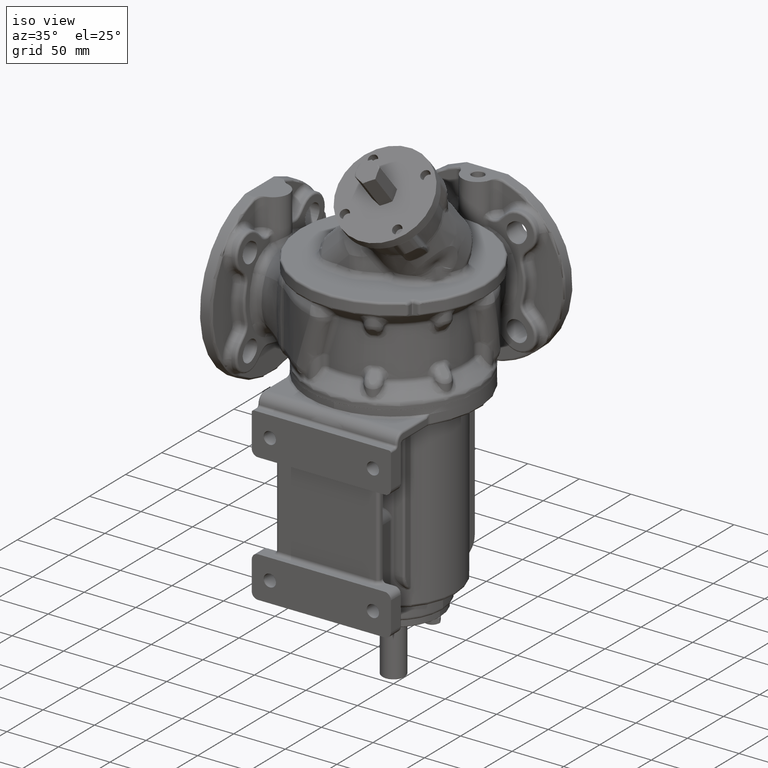
[diagram: clean part render]
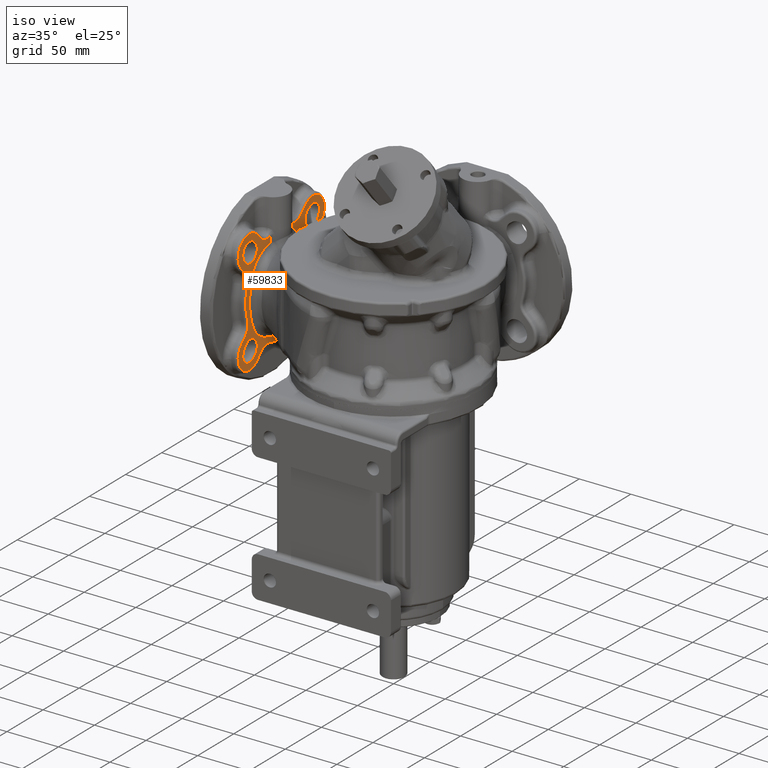
[diagram: same view with one face highlighted and labeled with its STEP entity id]
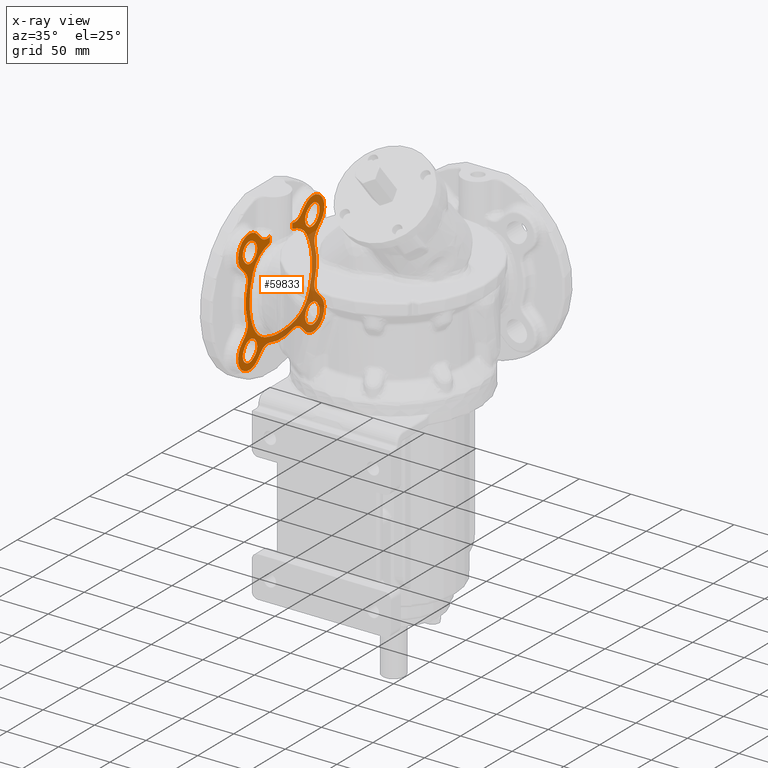
[diagram: x-ray of the same camera — body ghosted, the highlighted face saturated]
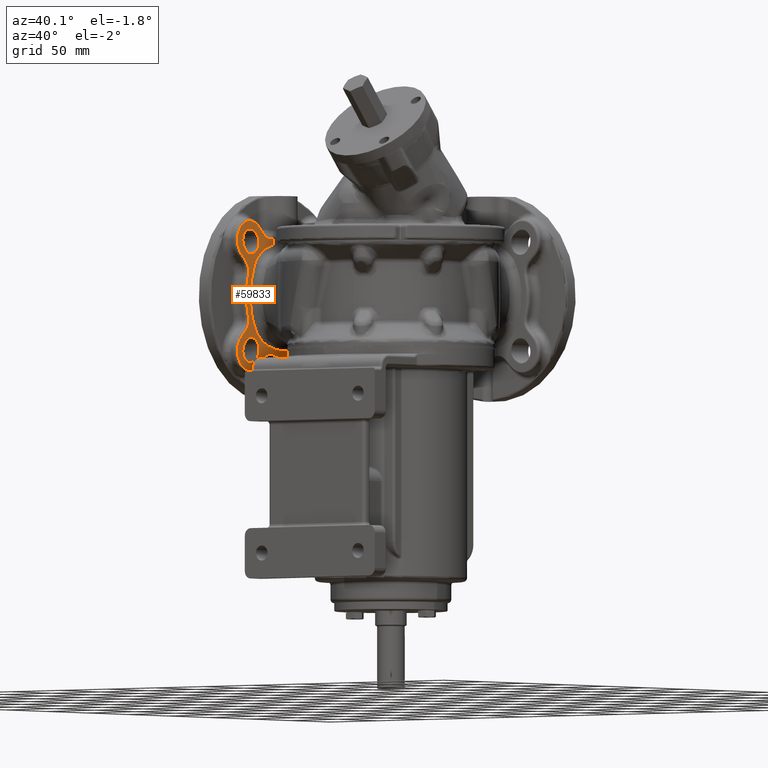
[diagram: same view with one face highlighted and labeled with its STEP entity id]
A machine part, iso view. The second image highlights one B-rep face of the part: STEP entity #59833.
The next image is the same camera in x-ray: the body ghosted, the highlighted face saturated — about 33% of this face is hidden behind the body in this view.
A second angle (auxiliary view) of the same face is appended — the face is thin or edge-on in the first view.
In plain terms, the highlighted planar face has unit normal (-1, 0, 0).
Its self-contained STEP definition (entity closure, byte-faithful):
#13187=CARTESIAN_POINT('',(-1.090000000029E2,2.128389456438E1,
8.964380451324E1));
#13188=CARTESIAN_POINT('',(-1.089999954299E2,2.067599871339E1,
8.986076207742E1));
#13189=CARTESIAN_POINT('',(-1.090000005511E2,1.944519283142E1,
9.027172386279E1));
#13190=CARTESIAN_POINT('',(-1.090000049261E2,1.755340057354E1,
9.082120822915E1));
#13191=CARTESIAN_POINT('',(-1.089999881383E2,1.626422520844E1,
9.114323647291E1));
#13192=CARTESIAN_POINT('',(-1.089999906337E2,1.561250317104E1,
9.129344307580E1));
#13194=DIRECTION('',(1.815754452543E-6,1.584827714395E-6,-9.999999999971E-1));
#13195=VECTOR('',#13194,5.158357434338E0);
#13196=CARTESIAN_POINT('',(-1.09E2,1.561249499594E1,9.645180051012E1));
#13197=LINE('',#13196,#13195);
#13198=CARTESIAN_POINT('',(-1.09E2,1.905618685977E1,1.079470598250E2));
#13199=DIRECTION('',(-1.E0,0.E0,0.E0));
#13200=DIRECTION('',(0.E0,7.071067811865E-1,-7.071067811865E-1));
#13201=AXIS2_PLACEMENT_3D('',#13198,#13199,#13200);
#13203=DIRECTION('',(0.E0,-7.071067812017E-1,-7.071067811713E-1));
#13204=VECTOR('',#13203,8.050482095565E0);
#13205=CARTESIAN_POINT('',(-1.09E2,3.323401871577E1,1.051543289326E2));
#13206=LINE('',#13205,#13204);
#13207=CARTESIAN_POINT('',(-1.09E2,4.419417382416E1,9.419417382416E1));
#13208=DIRECTION('',(1.E0,0.E0,0.E0));
#13209=DIRECTION('',(0.E0,7.071067811865E-1,-7.071067811865E-1));
#13210=AXIS2_PLACEMENT_3D('',#13207,#13208,#13209);
#13212=DIRECTION('',(0.E0,7.071067811524E-1,7.071067812207E-1));
#13213=VECTOR('',#13212,8.050482095491E0);
#13214=CARTESIAN_POINT('',(-1.09E2,4.946177845128E1,7.754146823395E1));
#13215=LINE('',#13214,#13213);
#13216=CARTESIAN_POINT('',(-1.09E2,5.794705982503E1,6.905618685977E1));
#13217=DIRECTION('',(-1.E0,0.E0,0.E0));
#13218=DIRECTION('',(0.E0,-9.499518004103E-1,-3.123965058979E-1));
#13219=AXIS2_PLACEMENT_3D('',#13216,#13217,#13218);
#13221=CARTESIAN_POINT('',(-1.09E2,0.E0,5.E1));
#13222=DIRECTION('',(1.E0,0.E0,0.E0));
#13223=DIRECTION('',(0.E0,9.499518004103E-1,-3.123965058979E-1));
#13224=AXIS2_PLACEMENT_3D('',#13221,#13222,#13223);
#13226=CARTESIAN_POINT('',(-1.09E2,5.794705982503E1,3.094381314023E1));
#13227=DIRECTION('',(-1.E0,0.E0,0.E0));
#13228=DIRECTION('',(0.E0,-7.071067811865E-1,-7.071067811865E-1));
#13229=AXIS2_PLACEMENT_3D('',#13226,#13227,#13228);
#13231=DIRECTION('',(0.E0,-7.071067811713E-1,7.071067812017E-1));
#13232=VECTOR('',#13231,8.050482095565E0);
#13233=CARTESIAN_POINT('',(-1.09E2,5.515432893255E1,1.676598128423E1));
#13234=LINE('',#13233,#13232);
#13235=CARTESIAN_POINT('',(-1.09E2,4.419417382416E1,5.805826175841E0));
#13236=DIRECTION('',(1.E0,0.E0,0.E0));
#13237=DIRECTION('',(0.E0,-7.071067811865E-1,-7.071067811865E-1));
#13238=AXIS2_PLACEMENT_3D('',#13235,#13236,#13237);
#13240=DIRECTION('',(-1.059130711426E-14,7.071067812207E-1,-7.071067811524E-1));
#13241=VECTOR('',#13240,8.050482095490E0);
#13242=CARTESIAN_POINT('',(-1.09E2,2.754146823395E1,5.382215487168E-1));
#13243=LINE('',#13242,#13241);
#13244=CARTESIAN_POINT('',(-1.09E2,1.905618685977E1,-7.947059825030E0));
#13245=DIRECTION('',(-1.E0,0.E0,0.E0));
#13246=DIRECTION('',(0.E0,-3.123965058979E-1,9.499518004103E-1));
#13247=AXIS2_PLACEMENT_3D('',#13244,#13245,#13246);
#13249=CARTESIAN_POINT('',(-1.09E2,0.E0,5.E1));
#13250=DIRECTION('',(1.E0,0.E0,0.E0));
#13251=DIRECTION('',(0.E0,-3.123965058979E-1,-9.499518004103E-1));
#13252=AXIS2_PLACEMENT_3D('',#13249,#13250,#13251);
#13254=CARTESIAN_POINT('',(-1.09E2,-1.905618685977E1,-7.947059825030E0));
#13255=DIRECTION('',(-1.E0,0.E0,0.E0));
#13256=DIRECTION('',(0.E0,-7.071067811865E-1,7.071067811865E-1));
#13257=AXIS2_PLACEMENT_3D('',#13254,#13255,#13256);
#13259=DIRECTION('',(0.E0,7.071067812017E-1,7.071067811713E-1));
#13260=VECTOR('',#13259,8.050482095565E0);
#13261=CARTESIAN_POINT('',(-1.09E2,-3.323401871577E1,-5.154328932551E0));
#13262=LINE('',#13261,#13260);
#13263=CARTESIAN_POINT('',(-1.09E2,-4.419417382416E1,5.805826175841E0));
#13264=DIRECTION('',(1.E0,0.E0,0.E0));
#13265=DIRECTION('',(0.E0,-7.071067811865E-1,7.071067811865E-1));
#13266=AXIS2_PLACEMENT_3D('',#13263,#13264,#13265);
#13268=DIRECTION('',(0.E0,-7.071067811524E-1,-7.071067812207E-1));
#13269=VECTOR('',#13268,8.050482095490E0);
#13270=CARTESIAN_POINT('',(-1.09E2,-4.946177845128E1,2.245853176605E1));
#13271=LINE('',#13270,#13269);
#13272=CARTESIAN_POINT('',(-1.09E2,-5.794705982503E1,3.094381314023E1));
#13273=DIRECTION('',(-1.E0,0.E0,0.E0));
#13274=DIRECTION('',(0.E0,9.499518004103E-1,3.123965058978E-1));
#13275=AXIS2_PLACEMENT_3D('',#13272,#13273,#13274);
#13277=CARTESIAN_POINT('',(-1.09E2,0.E0,5.E1));
#13278=DIRECTION('',(1.E0,0.E0,0.E0));
#13279=DIRECTION('',(0.E0,-9.499518004103E-1,3.123965058979E-1));
#13280=AXIS2_PLACEMENT_3D('',#13277,#13278,#13279);
#13282=CARTESIAN_POINT('',(-1.09E2,-5.794705982503E1,6.905618685977E1));
#13283=DIRECTION('',(-1.E0,0.E0,0.E0));
#13284=DIRECTION('',(0.E0,7.071067811865E-1,7.071067811865E-1));
#13285=AXIS2_PLACEMENT_3D('',#13282,#13283,#13284);
#13287=DIRECTION('',(0.E0,7.071067811713E-1,-7.071067812017E-1));
#13288=VECTOR('',#13287,8.050482095565E0);
#13289=CARTESIAN_POINT('',(-1.09E2,-5.515432893255E1,8.323401871577E1));
#13290=LINE('',#13289,#13288);
#13291=CARTESIAN_POINT('',(-1.09E2,-4.419417382416E1,9.419417382416E1));
#13292=DIRECTION('',(1.E0,0.E0,0.E0));
#13293=DIRECTION('',(0.E0,7.071067811865E-1,7.071067811865E-1));
#13294=AXIS2_PLACEMENT_3D('',#13291,#13292,#13293);
#13296=DIRECTION('',(0.E0,-7.071067812207E-1,7.071067811524E-1));
#13297=VECTOR('',#13296,8.050482095490E0);
#13298=CARTESIAN_POINT('',(-1.09E2,-2.754146823395E1,9.946177845128E1));
#13299=LINE('',#13298,#13297);
#13300=CARTESIAN_POINT('',(-1.09E2,-1.905618685977E1,1.079470598250E2));
#13301=DIRECTION('',(-1.E0,0.E0,0.E0));
#13302=DIRECTION('',(0.E0,2.869743204220E-1,-9.579382753697E-1));
#13303=AXIS2_PLACEMENT_3D('',#13300,#13301,#13302);
#13305=DIRECTION('',(1.128216650522E-7,2.957406500595E-6,9.999999999956E-1));
#13306=VECTOR('',#13305,5.202367743112E0);
#13307=CARTESIAN_POINT('',(-1.090000005869E2,-1.561251038147E1,
9.124943276617E1));
#13308=LINE('',#13307,#13306);
#13309=CARTESIAN_POINT('',(-1.090000005869E2,-1.561251038147E1,
9.124943276617E1));
#13310=CARTESIAN_POINT('',(-1.089999971633E2,-1.671626935527E1,
9.100054712072E1));
#13311=CARTESIAN_POINT('',(-1.089999975172E2,-1.884126086478E1,
9.045452564702E1));
#13312=CARTESIAN_POINT('',(-1.090000129448E2,-2.178399524781E1,
8.950108027550E1));
#13313=CARTESIAN_POINT('',(-1.089999714507E2,-2.358448566581E1,
8.878800731581E1));
#13314=CARTESIAN_POINT('',(-1.090000001221E2,-2.444524435160E1,
8.841340848381E1));
#13316=CARTESIAN_POINT('',(-1.090000001221E2,-2.444524435160E1,
8.841340848381E1));
#13317=CARTESIAN_POINT('',(-1.090000828153E2,-2.574966497412E1,
8.784601868877E1));
#13318=CARTESIAN_POINT('',(-1.089999621536E2,-2.824847908572E1,
8.653539048127E1));
#13319=CARTESIAN_POINT('',(-1.090000082393E2,-3.183335076841E1,
8.390025593914E1));
#13320=CARTESIAN_POINT('',(-1.090000048890E2,-3.473694107679E1,
8.097969347896E1));
#13321=CARTESIAN_POINT('',(-1.089999722045E2,-3.711571429785E1,
7.775340302932E1));
#13322=CARTESIAN_POINT('',(-1.090000615968E2,-3.853999204207E1,
7.505766497074E1));
#13323=CARTESIAN_POINT('',(-1.089999998600E2,-3.918768947206E1,
7.359825777113E1));
#13325=CARTESIAN_POINT('',(-1.089999998600E2,-3.918768947206E1,
7.359825777113E1));
#13326=CARTESIAN_POINT('',(-1.089999913509E2,-4.014396027098E1,
7.144580035176E1));
#13327=CARTESIAN_POINT('',(-1.090000040094E2,-4.180552288235E1,
6.690162180276E1));
#13328=CARTESIAN_POINT('',(-1.089999989406E2,-4.346258760274E1,
5.932368505712E1));
#13329=CARTESIAN_POINT('',(-1.090000002282E2,-4.414529939832E1,
5.094333822659E1));
#13330=CARTESIAN_POINT('',(-1.090000001467E2,-4.370130355312E1,
4.243778295628E1));
#13331=CARTESIAN_POINT('',(-1.089999991849E2,-4.224087350264E1,
3.468141514487E1));
#13332=CARTESIAN_POINT('',(-1.090000018042E2,-4.069593011116E1,
3.003138676434E1));
#13333=CARTESIAN_POINT('',(-1.089999999202E2,-3.979446096619E1,
2.782546661251E1));
#13335=CARTESIAN_POINT('',(-1.089999999202E2,-3.979446096619E1,
2.782546661251E1));
#13336=CARTESIAN_POINT('',(-1.090000293748E2,-3.907944455669E1,
2.607445663882E1));
#13337=CARTESIAN_POINT('',(-1.089999868910E2,-3.748956621118E1,
2.287300105185E1));
#13338=CARTESIAN_POINT('',(-1.090000018194E2,-3.478793897101E1,
1.913633846009E1));
#13339=CARTESIAN_POINT('',(-1.090000058315E2,-3.151137427151E1,
1.587928204626E1));
#13340=CARTESIAN_POINT('',(-1.089999748545E2,-2.731102030622E1,
1.293476240249E1));
#13341=CARTESIAN_POINT('',(-1.090000547851E2,-2.424702442092E1,
1.146437191366E1));
#13342=CARTESIAN_POINT('',(-1.090000000659E2,-2.261493555377E1,
1.084120580133E1));
#13344=CARTESIAN_POINT('',(-1.090000000659E2,-2.261493555377E1,
1.084120580133E1));
#13345=CARTESIAN_POINT('',(-1.089999557310E2,-2.065435262047E1,
1.009257591700E1));
#13346=CARTESIAN_POINT('',(-1.090000206581E2,-1.638005805409E1,
8.777568916424E0));
#13347=CARTESIAN_POINT('',(-1.089999941002E2,-8.865289608161E0,
7.458365851099E0));
#13348=CARTESIAN_POINT('',(-1.089999999940E2,-3.095430981267E0,
7.092374299501E0));
#13349=CARTESIAN_POINT('',(-1.09E2,-2.215114957113E-2,7.080926254618E0));
#13351=CARTESIAN_POINT('',(-1.09E2,-2.215114957113E-2,7.080926254618E0));
#13352=CARTESIAN_POINT('',(-1.089999971089E2,2.835505164924E0,
7.070291707739E0));
#13353=CARTESIAN_POINT('',(-1.090000004202E2,8.223148043643E0,
7.347444206202E0));
#13354=CARTESIAN_POINT('',(-1.090000028661E2,1.531621314617E1,
8.497780351880E0));
#13355=CARTESIAN_POINT('',(-1.089999930322E2,1.939643593897E1,
9.681667168879E0));
#13356=CARTESIAN_POINT('',(-1.09E2,2.128386767670E1,1.035540147691E1));
#13358=CARTESIAN_POINT('',(-1.09E2,2.128386767670E1,1.035540147691E1));
#13359=CARTESIAN_POINT('',(-1.090000442386E2,2.276430859106E1,
1.088382499150E1));
#13360=CARTESIAN_POINT('',(-1.089999794994E2,2.551265766248E1,
1.210600593222E1));
#13361=CARTESIAN_POINT('',(-1.090000053942E2,2.916297027206E1,
1.439890279943E1));
#13362=CARTESIAN_POINT('',(-1.089999989238E2,3.199281661296E1,
1.685064502184E1));
#13363=CARTESIAN_POINT('',(-1.089999989104E2,3.439610496337E1,
1.964170568302E1));
#13364=CARTESIAN_POINT('',(-1.090000054344E2,3.656355690417E1,
2.311351602578E1));
#13365=CARTESIAN_POINT('',(-1.089999880460E2,3.783152169155E1,
2.591078806424E1));
#13366=CARTESIAN_POINT('',(-1.090000000029E2,3.843262314823E1,
2.742385472773E1));
#13368=CARTESIAN_POINT('',(-1.090000000029E2,3.843262314823E1,
2.742385472773E1));
#13369=CARTESIAN_POINT('',(-1.090000095617E2,3.947675224382E1,
3.005260440760E1));
#13370=CARTESIAN_POINT('',(-1.089999955475E2,4.116739190602E1,
3.523918148846E1));
#13371=CARTESIAN_POINT('',(-1.090000012412E2,4.259526266552E1,
4.266997398013E1));
#13372=CARTESIAN_POINT('',(-1.089999994877E2,4.306411353099E1,
5.000138907850E1));
#13373=CARTESIAN_POINT('',(-1.090000008078E2,4.259498080375E1,
5.733244078051E1));
#13374=CARTESIAN_POINT('',(-1.089999972810E2,4.116644177028E1,
6.476443416923E1));
#13375=CARTESIAN_POINT('',(-1.090000058059E2,3.947616432684E1,
6.994885455064E1));
#13376=CARTESIAN_POINT('',(-1.090000000034E2,3.843258901497E1,
7.257622178034E1));
#13378=CARTESIAN_POINT('',(-1.090000000034E2,3.843258901497E1,
7.257622178034E1));
#13379=CARTESIAN_POINT('',(-1.089999864582E2,3.783110367628E1,
7.409021752442E1));
#13380=CARTESIAN_POINT('',(-1.090000061770E2,3.656296908746E1,
7.688902982185E1));
#13381=CARTESIAN_POINT('',(-1.089999986934E2,3.439411514626E1,
8.036391898067E1));
#13382=CARTESIAN_POINT('',(-1.089999990496E2,3.199331175185E1,
8.315216736828E1));
#13383=CARTESIAN_POINT('',(-1.090000051083E2,2.916486506112E1,
8.560157813315E1));
#13384=CARTESIAN_POINT('',(-1.089999805171E2,2.552414421129E1,
8.788784816703E1));
#13385=CARTESIAN_POINT('',(-1.090000420546E2,2.276951878565E1,
8.911358465033E1));
#13386=CARTESIAN_POINT('',(-1.090000000029E2,2.128389456438E1,
8.964380451324E1));
#13388=CARTESIAN_POINT('',(-1.09E2,4.419417382416E1,5.805826175841E0));
#13389=DIRECTION('',(-1.E0,0.E0,0.E0));
#13390=DIRECTION('',(0.E0,8.493086960671E-1,5.278965228005E-1));
#13391=AXIS2_PLACEMENT_3D('',#13388,#13389,#13390);
#13393=DIRECTION('',(0.E0,5.278965228005E-1,-8.493086960671E-1));
#13394=VECTOR('',#13393,2.142428528563E0);
#13395=CARTESIAN_POINT('',(-1.09E2,5.070697151819E1,1.237647806106E1));
#13396=LINE('',#13395,#13394);
#13397=CARTESIAN_POINT('',(-1.09E2,4.263853890555E1,7.361461094451E0));
#13398=DIRECTION('',(-1.E0,0.E0,0.E0));
#13399=DIRECTION('',(0.E0,-5.278965228005E-1,-8.493086960671E-1));
#13400=AXIS2_PLACEMENT_3D('',#13397,#13398,#13399);
#13402=DIRECTION('',(0.E0,-8.493086960671E-1,5.278965228005E-1));
#13403=VECTOR('',#13402,2.142428528563E0);
#13404=CARTESIAN_POINT('',(-1.09E2,3.944310511895E1,-1.837952088763E0));
#13405=LINE('',#13404,#13403);
#13406=CARTESIAN_POINT('',(-1.09E2,4.419417382416E1,9.419417382416E1));
#13407=DIRECTION('',(-1.E0,0.E0,0.E0));
#13408=DIRECTION('',(0.E0,-5.278965228005E-1,8.493086960671E-1));
#13409=AXIS2_PLACEMENT_3D('',#13406,#13407,#13408);
#13411=DIRECTION('',(0.E0,8.493086960671E-1,5.278965228005E-1));
#13412=VECTOR('',#13411,2.142428528563E0);
#13413=CARTESIAN_POINT('',(-1.09E2,3.762352193894E1,1.007069715182E2));
#13414=LINE('',#13413,#13412);
#13415=CARTESIAN_POINT('',(-1.09E2,4.263853890555E1,9.263853890555E1));
#13416=DIRECTION('',(-1.E0,0.E0,0.E0));
#13417=DIRECTION('',(0.E0,8.493086960671E-1,-5.278965228005E-1));
#13418=AXIS2_PLACEMENT_3D('',#13415,#13416,#13417);
#13420=DIRECTION('',(0.E0,-5.278965228005E-1,-8.493086960671E-1));
#13421=VECTOR('',#13420,2.142428528563E0);
#13422=CARTESIAN_POINT('',(-1.09E2,5.183795208876E1,8.944310511895E1));
#13423=LINE('',#13422,#13421);
#13424=CARTESIAN_POINT('',(-1.09E2,-4.419417382416E1,9.419417382416E1));
#13425=DIRECTION('',(-1.E0,0.E0,0.E0));
#13426=DIRECTION('',(0.E0,-8.493086960671E-1,-5.278965228005E-1));
#13427=AXIS2_PLACEMENT_3D('',#13424,#13425,#13426);
#13429=DIRECTION('',(0.E0,-5.278965228005E-1,8.493086960671E-1));
#13430=VECTOR('',#13429,2.142428528563E0);
#13431=CARTESIAN_POINT('',(-1.09E2,-5.070697151819E1,8.762352193894E1));
#13432=LINE('',#13431,#13430);
#13433=CARTESIAN_POINT('',(-1.09E2,-4.263853890555E1,9.263853890555E1));
#13434=DIRECTION('',(-1.E0,0.E0,0.E0));
#13435=DIRECTION('',(0.E0,5.278965228005E-1,8.493086960671E-1));
#13436=AXIS2_PLACEMENT_3D('',#13433,#13434,#13435);
#13438=DIRECTION('',(0.E0,8.493086960671E-1,-5.278965228005E-1));
#13439=VECTOR('',#13438,2.142428528563E0);
#13440=CARTESIAN_POINT('',(-1.09E2,-3.944310511895E1,1.018379520888E2));
#13441=LINE('',#13440,#13439);
#13442=CARTESIAN_POINT('',(-1.09E2,-4.419417382416E1,5.805826175841E0));
#13443=DIRECTION('',(-1.E0,0.E0,0.E0));
#13444=DIRECTION('',(0.E0,5.278965228005E-1,-8.493086960671E-1));
#13445=AXIS2_PLACEMENT_3D('',#13442,#13443,#13444);
#13447=DIRECTION('',(0.E0,-8.493086960671E-1,-5.278965228005E-1));
#13448=VECTOR('',#13447,2.142428528563E0);
#13449=CARTESIAN_POINT('',(-1.09E2,-3.762352193894E1,-7.069715181861E-1));
#13450=LINE('',#13449,#13448);
#13451=CARTESIAN_POINT('',(-1.09E2,-4.263853890555E1,7.361461094451E0));
#13452=DIRECTION('',(-1.E0,0.E0,0.E0));
#13453=DIRECTION('',(0.E0,-8.493086960671E-1,5.278965228005E-1));
#13454=AXIS2_PLACEMENT_3D('',#13451,#13452,#13453);
#13456=DIRECTION('',(0.E0,5.278965228005E-1,8.493086960671E-1));
#13457=VECTOR('',#13456,2.142428528563E0);
#13458=CARTESIAN_POINT('',(-1.09E2,-5.183795208876E1,1.055689488105E1));
#13459=LINE('',#13458,#13457);
#23251=CARTESIAN_POINT('',(-1.09E2,5.183795208876E1,1.055689488104E1));
#23252=CARTESIAN_POINT('',(-1.09E2,3.944310511895E1,-1.837952088763E0));
#23253=VERTEX_POINT('',#23251);
#23254=VERTEX_POINT('',#23252);
#23255=CARTESIAN_POINT('',(-1.09E2,3.762352193894E1,-7.069715181861E-1));
#23256=VERTEX_POINT('',#23255);
#23257=CARTESIAN_POINT('',(-1.09E2,5.070697151819E1,1.237647806106E1));
#23258=VERTEX_POINT('',#23257);
#23267=CARTESIAN_POINT('',(-1.09E2,3.944310511896E1,1.018379520888E2));
#23268=CARTESIAN_POINT('',(-1.09E2,5.183795208876E1,8.944310511895E1));
#23269=VERTEX_POINT('',#23267);
#23270=VERTEX_POINT('',#23268);
#23271=CARTESIAN_POINT('',(-1.09E2,5.070697151819E1,8.762352193894E1));
#23272=VERTEX_POINT('',#23271);
#23273=CARTESIAN_POINT('',(-1.09E2,3.762352193894E1,1.007069715182E2));
#23274=VERTEX_POINT('',#23273);
#23283=CARTESIAN_POINT('',(-1.09E2,-5.183795208876E1,8.944310511896E1));
#23284=CARTESIAN_POINT('',(-1.09E2,-3.944310511895E1,1.018379520888E2));
#23285=VERTEX_POINT('',#23283);
#23286=VERTEX_POINT('',#23284);
#23287=CARTESIAN_POINT('',(-1.09E2,-3.762352193894E1,1.007069715182E2));
#23288=VERTEX_POINT('',#23287);
#23289=CARTESIAN_POINT('',(-1.09E2,-5.070697151819E1,8.762352193894E1));
#23290=VERTEX_POINT('',#23289);
#23299=CARTESIAN_POINT('',(-1.09E2,-3.944310511896E1,-1.837952088763E0));
#23300=CARTESIAN_POINT('',(-1.09E2,-5.183795208876E1,1.055689488105E1));
#23301=VERTEX_POINT('',#23299);
#23302=VERTEX_POINT('',#23300);
#23303=CARTESIAN_POINT('',(-1.09E2,-5.070697151819E1,1.237647806106E1));
#23304=VERTEX_POINT('',#23303);
#23305=CARTESIAN_POINT('',(-1.09E2,-3.762352193894E1,-7.069715181861E-1));
#23306=VERTEX_POINT('',#23305);
#23435=VERTEX_POINT('',#13335);
#23436=VERTEX_POINT('',#13342);
#23439=VERTEX_POINT('',#13349);
#23441=VERTEX_POINT('',#13356);
#23443=VERTEX_POINT('',#13366);
#23445=VERTEX_POINT('',#13376);
#23447=VERTEX_POINT('',#13386);
#23449=VERTEX_POINT('',#13316);
#23450=VERTEX_POINT('',#13323);
#23559=CARTESIAN_POINT('',(-1.09E2,-4.654763822011E1,3.469257121100E1));
#23560=CARTESIAN_POINT('',(-1.09E2,-4.946177845079E1,2.245853176599E1));
#23561=VERTEX_POINT('',#23559);
#23562=VERTEX_POINT('',#23560);
#23567=CARTESIAN_POINT('',(-1.09E2,-5.515432893255E1,1.676598128423E1));
#23568=VERTEX_POINT('',#23567);
#23571=CARTESIAN_POINT('',(-1.09E2,-3.323401871577E1,-5.154328932551E0));
#23572=VERTEX_POINT('',#23571);
#23575=CARTESIAN_POINT('',(-1.09E2,-2.754146823405E1,5.382215489215E-1));
#23576=VERTEX_POINT('',#23575);
#23579=CARTESIAN_POINT('',(-1.09E2,-1.530742878900E1,3.452361779894E0));
#23580=VERTEX_POINT('',#23579);
#23583=CARTESIAN_POINT('',(-1.09E2,1.530742878900E1,3.452361779894E0));
#23584=VERTEX_POINT('',#23583);
#23587=CARTESIAN_POINT('',(-1.09E2,2.754146823401E1,5.382215492090E-1));
#23588=VERTEX_POINT('',#23587);
#23591=CARTESIAN_POINT('',(-1.09E2,3.323401871577E1,-5.154328932551E0));
#23592=VERTEX_POINT('',#23591);
#23595=CARTESIAN_POINT('',(-1.09E2,5.515432893255E1,1.676598128423E1));
#23596=VERTEX_POINT('',#23595);
#23599=CARTESIAN_POINT('',(-1.09E2,4.946177845108E1,2.245853176595E1));
#23600=VERTEX_POINT('',#23599);
#23603=CARTESIAN_POINT('',(-1.09E2,4.654763822011E1,3.469257121100E1));
#23604=VERTEX_POINT('',#23603);
#23607=CARTESIAN_POINT('',(-1.09E2,4.654763822011E1,6.530742878900E1));
#23608=VERTEX_POINT('',#23607);
#23611=CARTESIAN_POINT('',(-1.09E2,4.946177845079E1,7.754146823401E1));
#23612=VERTEX_POINT('',#23611);
#23615=CARTESIAN_POINT('',(-1.09E2,5.515432893255E1,8.323401871577E1));
#23616=VERTEX_POINT('',#23615);
#23619=CARTESIAN_POINT('',(-1.09E2,3.323401871577E1,1.051543289326E2));
#23620=VERTEX_POINT('',#23619);
#23623=CARTESIAN_POINT('',(-1.09E2,2.754146823405E1,9.946177845108E1));
#23624=VERTEX_POINT('',#23623);
#23627=CARTESIAN_POINT('',(-1.09E2,-2.754146823395E1,9.946177845128E1));
#23628=CARTESIAN_POINT('',(-1.09E2,-3.323401871577E1,1.051543289326E2));
#23629=VERTEX_POINT('',#23627);
#23630=VERTEX_POINT('',#23628);
#23635=CARTESIAN_POINT('',(-1.09E2,-5.515432893255E1,8.323401871577E1));
#23636=VERTEX_POINT('',#23635);
#23639=CARTESIAN_POINT('',(-1.09E2,-4.946177845108E1,7.754146823405E1));
#23640=VERTEX_POINT('',#23639);
#23643=CARTESIAN_POINT('',(-1.09E2,-4.654763822011E1,6.530742878900E1));
#23644=VERTEX_POINT('',#23643);
#23903=VERTEX_POINT('',#13192);
#23905=VERTEX_POINT('',#13309);
#23907=CARTESIAN_POINT('',(-1.09E2,1.561249501379E1,9.645180052087E1));
#23908=VERTEX_POINT('',#23907);
#23911=CARTESIAN_POINT('',(-1.09E2,-1.561249501470E1,9.645180052059E1));
#23912=VERTEX_POINT('',#23911);
#59717=CARTESIAN_POINT('',(-1.09E2,0.E0,5.E1));
#59718=DIRECTION('',(-1.E0,0.E0,0.E0));
#59719=DIRECTION('',(0.E0,0.E0,1.E0));
#59720=AXIS2_PLACEMENT_3D('',#59717,#59718,#59719);
#59721=PLANE('',#59720);
#59723=ORIENTED_EDGE('',*,*,#59722,.T.);
#59725=ORIENTED_EDGE('',*,*,#59724,.F.);
#59727=ORIENTED_EDGE('',*,*,#59726,.F.);
#59729=ORIENTED_EDGE('',*,*,#59728,.F.);
#59731=ORIENTED_EDGE('',*,*,#59730,.F.);
#59733=ORIENTED_EDGE('',*,*,#59732,.F.);
#59735=ORIENTED_EDGE('',*,*,#59734,.F.);
#59737=ORIENTED_EDGE('',*,*,#59736,.F.);
#59739=ORIENTED_EDGE('',*,*,#59738,.F.);
#59741=ORIENTED_EDGE('',*,*,#59740,.F.);
#59743=ORIENTED_EDGE('',*,*,#59742,.F.);
#59745=ORIENTED_EDGE('',*,*,#59744,.F.);
#59747=ORIENTED_EDGE('',*,*,#59746,.F.);
#59749=ORIENTED_EDGE('',*,*,#59748,.F.);
#59751=ORIENTED_EDGE('',*,*,#59750,.F.);
#59753=ORIENTED_EDGE('',*,*,#59752,.F.);
#59755=ORIENTED_EDGE('',*,*,#59754,.F.);
#59757=ORIENTED_EDGE('',*,*,#59756,.F.);
#59759=ORIENTED_EDGE('',*,*,#59758,.F.);
#59761=ORIENTED_EDGE('',*,*,#59760,.F.);
#59763=ORIENTED_EDGE('',*,*,#59762,.F.);
#59765=ORIENTED_EDGE('',*,*,#59764,.F.);
#59767=ORIENTED_EDGE('',*,*,#59766,.F.);
#59769=ORIENTED_EDGE('',*,*,#59768,.F.);
#59771=ORIENTED_EDGE('',*,*,#59770,.F.);
#59773=ORIENTED_EDGE('',*,*,#59772,.F.);
#59775=ORIENTED_EDGE('',*,*,#59774,.T.);
#59777=ORIENTED_EDGE('',*,*,#59776,.T.);
#59779=ORIENTED_EDGE('',*,*,#59778,.T.);
#59781=ORIENTED_EDGE('',*,*,#59780,.T.);
#59783=ORIENTED_EDGE('',*,*,#59782,.T.);
#59785=ORIENTED_EDGE('',*,*,#59784,.T.);
#59787=ORIENTED_EDGE('',*,*,#59786,.T.);
#59789=ORIENTED_EDGE('',*,*,#59788,.T.);
#59790=ORIENTED_EDGE('',*,*,#59707,.T.);
#59791=EDGE_LOOP('',(#59723,#59725,#59727,#59729,#59731,#59733,#59735,#59737,
#59739,#59741,#59743,#59745,#59747,#59749,#59751,#59753,#59755,#59757,#59759,
#59761,#59763,#59765,#59767,#59769,#59771,#59773,#59775,#59777,#59779,#59781,
#59783,#59785,#59787,#59789,#59790));
#59792=FACE_OUTER_BOUND('',#59791,.F.);
#59794=ORIENTED_EDGE('',*,*,#59793,.F.);
#59796=ORIENTED_EDGE('',*,*,#59795,.F.);
#59798=ORIENTED_EDGE('',*,*,#59797,.F.);
#59800=ORIENTED_EDGE('',*,*,#59799,.F.);
#59801=EDGE_LOOP('',(#59794,#59796,#59798,#59800));
#59802=FACE_BOUND('',#59801,.F.);
#59804=ORIENTED_EDGE('',*,*,#59803,.F.);
#59806=ORIENTED_EDGE('',*,*,#59805,.F.);
#59808=ORIENTED_EDGE('',*,*,#59807,.F.);
#59810=ORIENTED_EDGE('',*,*,#59809,.F.);
#59811=EDGE_LOOP('',(#59804,#59806,#59808,#59810));
#59812=FACE_BOUND('',#59811,.F.);
#59814=ORIENTED_EDGE('',*,*,#59813,.F.);
#59816=ORIENTED_EDGE('',*,*,#59815,.F.);
#59818=ORIENTED_EDGE('',*,*,#59817,.F.);
#59820=ORIENTED_EDGE('',*,*,#59819,.F.);
#59821=EDGE_LOOP('',(#59814,#59816,#59818,#59820));
#59822=FACE_BOUND('',#59821,.F.);
#59824=ORIENTED_EDGE('',*,*,#59823,.F.);
#59826=ORIENTED_EDGE('',*,*,#59825,.F.);
#59828=ORIENTED_EDGE('',*,*,#59827,.F.);
#59830=ORIENTED_EDGE('',*,*,#59829,.F.);
#59831=EDGE_LOOP('',(#59824,#59826,#59828,#59830));
#59832=FACE_BOUND('',#59831,.F.);
#59833=ADVANCED_FACE('',(#59792,#59802,#59812,#59822,#59832),#59721,.F.);
#13193=B_SPLINE_CURVE_WITH_KNOTS('',3,(#13187,#13188,#13189,#13190,#13191,
#13192),.UNSPECIFIED.,.F.,.F.,(4,1,1,4),(0.E0,3.333333333333E-1,
6.666666666667E-1,1.E0),.UNSPECIFIED.);
#13202=CIRCLE('',#13201,1.2E1);
#13211=CIRCLE('',#13210,1.55E1);
#13220=CIRCLE('',#13219,1.2E1);
#13225=CIRCLE('',#13224,4.9E1);
#13230=CIRCLE('',#13229,1.2E1);
#13239=CIRCLE('',#13238,1.55E1);
#13248=CIRCLE('',#13247,1.2E1);
#13253=CIRCLE('',#13252,4.9E1);
#13258=CIRCLE('',#13257,1.2E1);
#13267=CIRCLE('',#13266,1.55E1);
#13276=CIRCLE('',#13275,1.2E1);
#13281=CIRCLE('',#13280,4.9E1);
#13286=CIRCLE('',#13285,1.2E1);
#13295=CIRCLE('',#13294,1.55E1);
#13304=CIRCLE('',#13303,1.2E1);
#13315=B_SPLINE_CURVE_WITH_KNOTS('',3,(#13309,#13310,#13311,#13312,#13313,
#13314),.UNSPECIFIED.,.F.,.F.,(4,1,1,4),(0.E0,3.333333333333E-1,
6.666666666667E-1,1.E0),.UNSPECIFIED.);
#13324=B_SPLINE_CURVE_WITH_KNOTS('',3,(#13316,#13317,#13318,#13319,#13320,
#13321,#13322,#13323),.UNSPECIFIED.,.F.,.F.,(4,1,1,1,1,4),(0.E0,2.E-1,4.E-1,
6.E-1,8.E-1,1.E0),.UNSPECIFIED.);
#13334=B_SPLINE_CURVE_WITH_KNOTS('',3,(#13325,#13326,#13327,#13328,#13329,
#13330,#13331,#13332,#13333),.UNSPECIFIED.,.F.,.F.,(4,1,1,1,1,1,4),(0.E0,
1.666666666667E-1,3.333333333333E-1,5.E-1,6.666666666667E-1,8.333333333333E-1,
1.E0),.UNSPECIFIED.);
#13343=B_SPLINE_CURVE_WITH_KNOTS('',3,(#13335,#13336,#13337,#13338,#13339,
#13340,#13341,#13342),.UNSPECIFIED.,.F.,.F.,(4,1,1,1,1,4),(0.E0,2.E-1,4.E-1,
6.E-1,8.E-1,1.E0),.UNSPECIFIED.);
#13350=B_SPLINE_CURVE_WITH_KNOTS('',3,(#13344,#13345,#13346,#13347,#13348,
#13349),.UNSPECIFIED.,.F.,.F.,(4,1,1,4),(0.E0,3.333333333333E-1,
6.666666666667E-1,1.E0),.UNSPECIFIED.);
#13357=B_SPLINE_CURVE_WITH_KNOTS('',3,(#13351,#13352,#13353,#13354,#13355,
#13356),.UNSPECIFIED.,.F.,.F.,(4,1,1,4),(0.E0,3.333333333333E-1,
6.666666666667E-1,1.E0),.UNSPECIFIED.);
#13367=B_SPLINE_CURVE_WITH_KNOTS('',3,(#13358,#13359,#13360,#13361,#13362,
#13363,#13364,#13365,#13366),.UNSPECIFIED.,.F.,.F.,(4,1,1,1,1,1,4),(0.E0,
1.666666666667E-1,3.333333333333E-1,5.E-1,6.666666666667E-1,8.333333333333E-1,
1.E0),.UNSPECIFIED.);
#13377=B_SPLINE_CURVE_WITH_KNOTS('',3,(#13368,#13369,#13370,#13371,#13372,
#13373,#13374,#13375,#13376),.UNSPECIFIED.,.F.,.F.,(4,1,1,1,1,1,4),(0.E0,
1.666666666667E-1,3.333333333333E-1,5.E-1,6.666666666667E-1,8.333333333333E-1,
1.E0),.UNSPECIFIED.);
#13387=B_SPLINE_CURVE_WITH_KNOTS('',3,(#13378,#13379,#13380,#13381,#13382,
#13383,#13384,#13385,#13386),.UNSPECIFIED.,.F.,.F.,(4,1,1,1,1,1,4),(0.E0,
1.666666666667E-1,3.333333333333E-1,5.E-1,6.666666666667E-1,8.333333333333E-1,
1.E0),.UNSPECIFIED.);
#13392=CIRCLE('',#13391,9.E0);
#13401=CIRCLE('',#13400,9.5E0);
#13410=CIRCLE('',#13409,9.E0);
#13419=CIRCLE('',#13418,9.5E0);
#13428=CIRCLE('',#13427,9.E0);
#13437=CIRCLE('',#13436,9.5E0);
#13446=CIRCLE('',#13445,9.E0);
#13455=CIRCLE('',#13454,9.5E0);
#59707=EDGE_CURVE('',#23445,#23447,#13387,.T.);
#59722=EDGE_CURVE('',#23447,#23903,#13193,.T.);
#59724=EDGE_CURVE('',#23908,#23903,#13197,.T.);
#59726=EDGE_CURVE('',#23624,#23908,#13202,.T.);
#59728=EDGE_CURVE('',#23620,#23624,#13206,.T.);
#59730=EDGE_CURVE('',#23616,#23620,#13211,.T.);
#59732=EDGE_CURVE('',#23612,#23616,#13215,.T.);
#59734=EDGE_CURVE('',#23608,#23612,#13220,.T.);
#59736=EDGE_CURVE('',#23604,#23608,#13225,.T.);
#59738=EDGE_CURVE('',#23600,#23604,#13230,.T.);
#59740=EDGE_CURVE('',#23596,#23600,#13234,.T.);
#59742=EDGE_CURVE('',#23592,#23596,#13239,.T.);
#59744=EDGE_CURVE('',#23588,#23592,#13243,.T.);
#59746=EDGE_CURVE('',#23584,#23588,#13248,.T.);
#59748=EDGE_CURVE('',#23580,#23584,#13253,.T.);
#59750=EDGE_CURVE('',#23576,#23580,#13258,.T.);
#59752=EDGE_CURVE('',#23572,#23576,#13262,.T.);
#59754=EDGE_CURVE('',#23568,#23572,#13267,.T.);
#59756=EDGE_CURVE('',#23562,#23568,#13271,.T.);
#59758=EDGE_CURVE('',#23561,#23562,#13276,.T.);
#59760=EDGE_CURVE('',#23644,#23561,#13281,.T.);
#59762=EDGE_CURVE('',#23640,#23644,#13286,.T.);
#59764=EDGE_CURVE('',#23636,#23640,#13290,.T.);
#59766=EDGE_CURVE('',#23630,#23636,#13295,.T.);
#59768=EDGE_CURVE('',#23629,#23630,#13299,.T.);
#59770=EDGE_CURVE('',#23912,#23629,#13304,.T.);
#59772=EDGE_CURVE('',#23905,#23912,#13308,.T.);
#59774=EDGE_CURVE('',#23905,#23449,#13315,.T.);
#59776=EDGE_CURVE('',#23449,#23450,#13324,.T.);
#59778=EDGE_CURVE('',#23450,#23435,#13334,.T.);
#59780=EDGE_CURVE('',#23435,#23436,#13343,.T.);
#59782=EDGE_CURVE('',#23436,#23439,#13350,.T.);
#59784=EDGE_CURVE('',#23439,#23441,#13357,.T.);
#59786=EDGE_CURVE('',#23441,#23443,#13367,.T.);
#59788=EDGE_CURVE('',#23443,#23445,#13377,.T.);
#59793=EDGE_CURVE('',#23253,#23254,#13392,.T.);
#59795=EDGE_CURVE('',#23258,#23253,#13396,.T.);
#59797=EDGE_CURVE('',#23256,#23258,#13401,.T.);
#59799=EDGE_CURVE('',#23254,#23256,#13405,.T.);
#59803=EDGE_CURVE('',#23269,#23270,#13410,.T.);
#59805=EDGE_CURVE('',#23274,#23269,#13414,.T.);
#59807=EDGE_CURVE('',#23272,#23274,#13419,.T.);
#59809=EDGE_CURVE('',#23270,#23272,#13423,.T.);
#59813=EDGE_CURVE('',#23285,#23286,#13428,.T.);
#59815=EDGE_CURVE('',#23290,#23285,#13432,.T.);
#59817=EDGE_CURVE('',#23288,#23290,#13437,.T.);
#59819=EDGE_CURVE('',#23286,#23288,#13441,.T.);
#59823=EDGE_CURVE('',#23301,#23302,#13446,.T.);
#59825=EDGE_CURVE('',#23306,#23301,#13450,.T.);
#59827=EDGE_CURVE('',#23304,#23306,#13455,.T.);
#59829=EDGE_CURVE('',#23302,#23304,#13459,.T.);